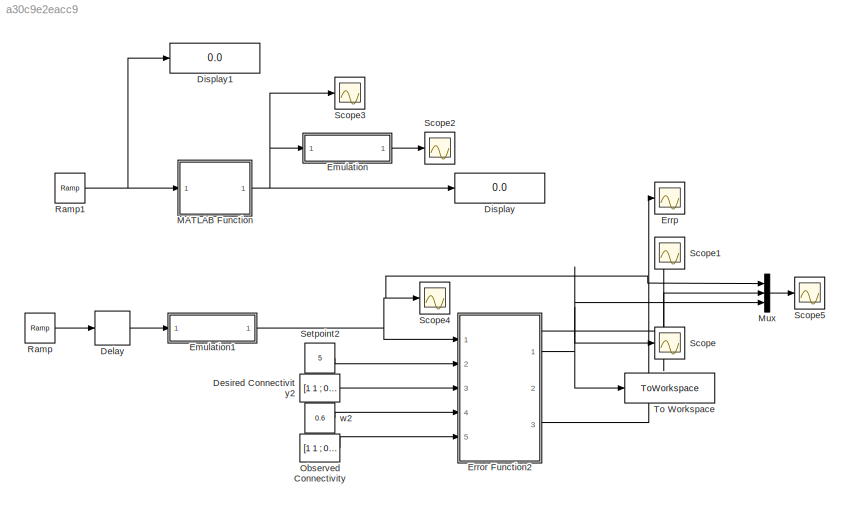
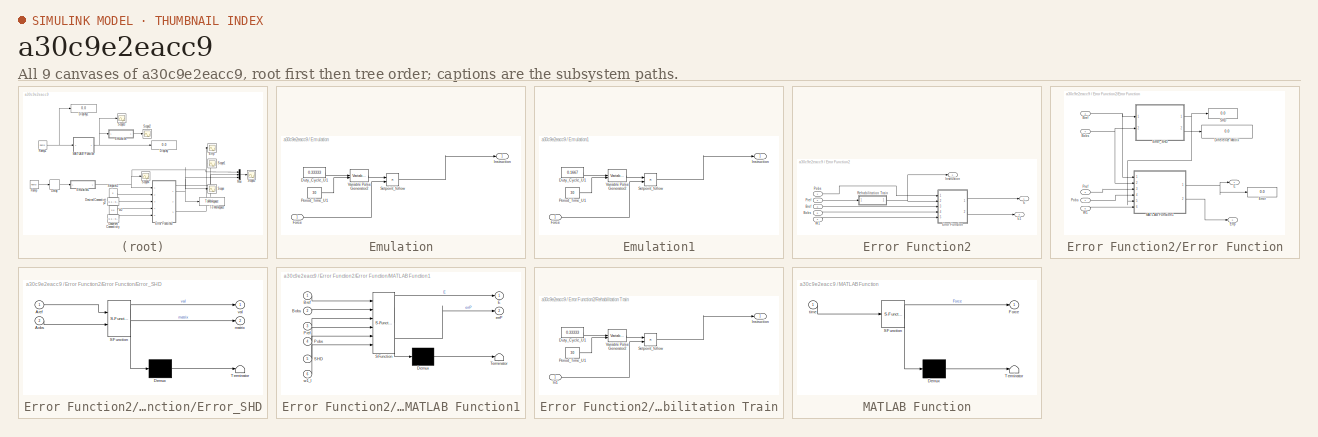
[diagram: thumbnail index - all 9 canvases of the model, root first then tree order]
MODEL slx_a30c9e2eacc9
KIND model
CONFIG AbsTol = auto
CONFIG EnableMultiTasking = off
CONFIG FixedStep = 1
CONFIG MaxStep = auto
CONFIG MinStep = auto
CONFIG RelTol = 1e-3
CONFIG SampleTimeConstraint = Unconstrained
CONFIG SolverName = FixedStepAuto
CONFIG StartTime = 0.0
CONFIG StopTime = 300
BLOCK [Delay] Delay
  DelayLength = 1
  InitialCondition = 0
  InputPortMap = u0
  Ports = [1, 1]
BLOCK [Constant] Desired Connectivity2
  NameLocation = left
  Value = [1   1 ; 0  1]
BLOCK [Display] Display
  Commented = on
  Decimation = 1
  Ports = [1]
BLOCK [Display] Display1
  Commented = on
  Decimation = 1
  Ports = [1]
BLOCK [SubSystem] Emulation
  Commented = on
  NameLocation = top
  Ports = [1, 1]
  RequestExecContextInheritance = off
BLOCK [Constant] Emulation/Duty_Cycle_U1
  OutMax = [0.8]
  OutMin = [0]
  Value = 0.33333
BLOCK [Inport] Emulation/Force
BLOCK [Outport] Emulation/Instruction
BLOCK [Constant] Emulation/Period_Time_U1
  Value = 30
BLOCK [Product] Emulation/Setpoint_follow
  Ports = [2, 1]
BLOCK [VariablePulseGenerator] Emulation/Variable Pulse Generator2
  AllowZeroPulseWidth = on
  NameLocation = left
  RunAtFixedTimeIntervals = on
BLOCK [SubSystem] Emulation1
  NameLocation = top
  Ports = [1, 1]
  RequestExecContextInheritance = off
BLOCK [Constant] Emulation1/Duty_Cycle_U1
  OutMax = [0.8]
  OutMin = [0]
  Value = 0.1667
BLOCK [Inport] Emulation1/Force
BLOCK [Outport] Emulation1/Instruction
BLOCK [Constant] Emulation1/Period_Time_U1
  Value = 30
BLOCK [Product] Emulation1/Setpoint_follow
  Ports = [2, 1]
BLOCK [VariablePulseGenerator] Emulation1/Variable Pulse Generator2
  AllowZeroPulseWidth = on
  NameLocation = left
  RunAtFixedTimeIntervals = on
BLOCK [SubSystem] Error Function2
  PortSchema = {"entries":[{"content":{"sides":[{"content":{"connectorIds":["In1","In2","In3","In4","In5"]},"type":"ConnectorPlacement.EquallySpacedRectSide","uuid":"444fbf9f-83f0-405e-b780-73f2a519e5d8"},{"content":{"connectorIds":["Out1"],"side":"RIGHT"},"type":"ConnectorPlacement.EquallySpacedRectSide","uuid":"580feeb9-eb76-4e38-ada2-7c0fba9b3602"},{"content":{"connectorIds":["Out2","Out3"],"side":"TOP"},"typ...<+277ch>
  Ports = [5, 3]
  RequestExecContextInheritance = off
BLOCK [Inport] Error Function2/Bobs
  NameLocation = left
  Port = 5
BLOCK [Inport] Error Function2/Bref
  NameLocation = left
  Port = 3
BLOCK [Outport] Error Function2/E
BLOCK [Outport] Error Function2/E1
  Port = 3
BLOCK [SubSystem] Error Function2/Error Function
  Ports = [5, 2]
  RequestExecContextInheritance = off
BLOCK [Inport] Error Function2/Error Function/Bobs
  Port = 4
BLOCK [Inport] Error Function2/Error Function/Bref
  Port = 3
BLOCK [Display] Error Function2/Error Function/Difference Matrix
  Decimation = 1
  Ports = [1]
BLOCK [Outport] Error Function2/Error Function/E
BLOCK [Display] Error Function2/Error Function/Error
  Decimation = 1
  Ports = [1]
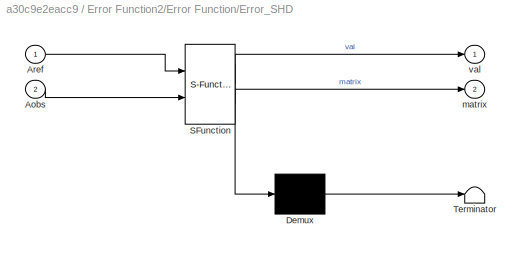
BLOCK [SubSystem] Error Function2/Error Function/Error_SHD
  ErrorFcn = Stateflow.Translate.translate
  PermitHierarchicalResolution = ExplicitOnly
  Ports = [2, 2]
  RequestExecContextInheritance = off
  SFBlockType = MATLAB Function
  TreatAsAtomicUnit = on
BLOCK [Demux] Error Function2/Error Function/Error_SHD/ Demux 
  Outputs = 1
  Ports = [1, 1]
BLOCK [S-Function] Error Function2/Error Function/Error_SHD/ SFunction 
  EnableBusSupport = on
  FunctionName = sf_sfun
  PortCounts = [2 3]
  Ports = [2, 3]
  SFcnIsStateOwnerBlock = off
  SFunctionDeploymentMode = off
  Tag = Stateflow S-Function 6
BLOCK [Terminator] Error Function2/Error Function/Error_SHD/ Terminator 
BLOCK [Inport] Error Function2/Error Function/Error_SHD/Aobs
  Port = 2
BLOCK [Inport] Error Function2/Error Function/Error_SHD/Aref
BLOCK [Outport] Error Function2/Error Function/Error_SHD/matrix
  Port = 2
BLOCK [Outport] Error Function2/Error Function/Error_SHD/val
BLOCK [Outport] Error Function2/Error Function/Errp
  Port = 2
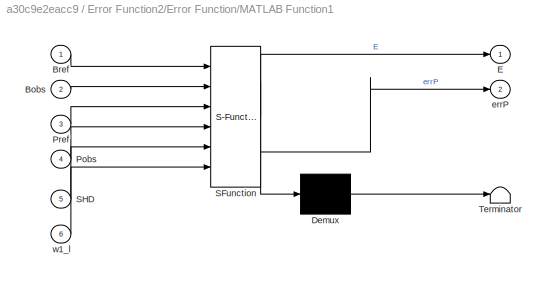
BLOCK [SubSystem] Error Function2/Error Function/MATLAB Function1
  ErrorFcn = Stateflow.Translate.translate
  PermitHierarchicalResolution = ExplicitOnly
  Ports = [6, 2]
  RequestExecContextInheritance = off
  SFBlockType = MATLAB Function
  TreatAsAtomicUnit = on
BLOCK [Demux] Error Function2/Error Function/MATLAB Function1/ Demux 
  Outputs = 1
  Ports = [1, 1]
BLOCK [S-Function] Error Function2/Error Function/MATLAB Function1/ SFunction 
  EnableBusSupport = on
  FunctionName = sf_sfun
  PortCounts = [6 3]
  Ports = [6, 3]
  SFcnIsStateOwnerBlock = off
  SFunctionDeploymentMode = off
  Tag = Stateflow S-Function 8
BLOCK [Terminator] Error Function2/Error Function/MATLAB Function1/ Terminator 
BLOCK [Inport] Error Function2/Error Function/MATLAB Function1/Bobs
  Port = 2
BLOCK [Inport] Error Function2/Error Function/MATLAB Function1/Bref
BLOCK [Outport] Error Function2/Error Function/MATLAB Function1/E
BLOCK [Inport] Error Function2/Error Function/MATLAB Function1/Pobs
  Port = 4
BLOCK [Inport] Error Function2/Error Function/MATLAB Function1/Pref
  Port = 3
BLOCK [Inport] Error Function2/Error Function/MATLAB Function1/SHD
  Port = 5
BLOCK [Outport] Error Function2/Error Function/MATLAB Function1/errP
  Port = 2
BLOCK [Inport] Error Function2/Error Function/MATLAB Function1/w1_l
  Port = 6
BLOCK [Inport] Error Function2/Error Function/Pobs
BLOCK [Inport] Error Function2/Error Function/Pref
  Port = 2
BLOCK [Display] Error Function2/Error Function/SHD
  Decimation = 1
  Ports = [1]
BLOCK [Inport] Error Function2/Error Function/W1
  Port = 5
BLOCK [Outport] Error Function2/Instruction
  Port = 2
BLOCK [Inport] Error Function2/Pobs
  NameLocation = left
BLOCK [Inport] Error Function2/Pref
  NameLocation = left
  Port = 2
BLOCK [SubSystem] Error Function2/Rehabilitation Train
  NameLocation = top
  Ports = [1, 1]
  RequestExecContextInheritance = off
BLOCK [Constant] Error Function2/Rehabilitation Train/Duty_Cycle_U1
  OutMax = [0.8]
  OutMin = [0]
  Value = 0.33333
BLOCK [Inport] Error Function2/Rehabilitation Train/In1
BLOCK [Outport] Error Function2/Rehabilitation Train/Instruction
BLOCK [Constant] Error Function2/Rehabilitation Train/Period_Time_U1
  Value = 30
BLOCK [Product] Error Function2/Rehabilitation Train/Setpoint_follow
  Ports = [2, 1]
BLOCK [VariablePulseGenerator] Error Function2/Rehabilitation Train/Variable Pulse Generator2
  AllowZeroPulseWidth = on
  NameLocation = left
  RunAtFixedTimeIntervals = on
BLOCK [Inport] Error Function2/W1
  NameLocation = left
  Port = 4
BLOCK [Scope] Errp
  Floating = off
  NumInputPorts = 1
  Ports = [1]
  ScopeSpecificationString = Simulink.scopes.TimeScopeBlockCfg('CurrentConfiguration', extmgr.ConfigurationSet(extmgr.Configuration('Core','General UI',true),extmgr.Configuration('Core','Source UI',true),extmgr.Configuration('Sources','WiredSimulink',true,'DataLoggingVariableName','ScopeData1'),extmgr.Configuration('Visuals','Time Domain',true,'SerializedDisplays',{struct('MinYLimReal','-3.14673','MaxYLimReal','28.3206','YLab...<+1434ch>
BLOCK [SubSystem] MATLAB Function
  Commented = on
  ErrorFcn = Stateflow.Translate.translate
  PermitHierarchicalResolution = ExplicitOnly
  Ports = [1, 1]
  RequestExecContextInheritance = off
  SFBlockType = MATLAB Function
  TreatAsAtomicUnit = on
BLOCK [Demux] MATLAB Function/ Demux 
  Outputs = 1
  Ports = [1, 1]
BLOCK [S-Function] MATLAB Function/ SFunction 
  EnableBusSupport = on
  FunctionName = sf_sfun
  PortCounts = [1 2]
  Ports = [1, 2]
  SFcnIsStateOwnerBlock = off
  SFunctionDeploymentMode = off
  Tag = Stateflow S-Function 2
BLOCK [Terminator] MATLAB Function/ Terminator 
BLOCK [Outport] MATLAB Function/Force
BLOCK [Inport] MATLAB Function/time
BLOCK [Mux] Mux
  DisplayOption = bar
  Inputs = 3
  Ports = [3, 1]
BLOCK [Constant] Observed Connectivity
  NameLocation = left
  Value = [1   1 ; 0  1]
BLOCK [Reference] Ramp  REF=simulink/Sources/Ramp
  Ports = [0, 1]
  SourceBlock = simulink/Sources/Ramp
  SourceProductBaseCode = SL
  SourceType = Ramp
BLOCK [Reference] Ramp1  REF=simulink/Sources/Ramp
  Commented = on
  Ports = [0, 1]
  SourceBlock = simulink/Sources/Ramp
  SourceProductBaseCode = SL
  SourceType = Ramp
BLOCK [Scope] Scope
  Floating = off
  NumInputPorts = 1
  Ports = [1]
  ScopeSpecificationString = Simulink.scopes.TimeScopeBlockCfg('CurrentConfiguration', extmgr.ConfigurationSet(extmgr.Configuration('Core','General UI',true),extmgr.Configuration('Core','Source UI',true),extmgr.Configuration('Sources','WiredSimulink',true),extmgr.Configuration('Visuals','Time Domain',true,'SerializedDisplays',{struct('MinYLimReal','-1.25869','MaxYLimReal','11.32824','YLabelReal','','MinYLimMag','0.00000','Max...<+1366ch>
BLOCK [Scope] Scope1
  Floating = off
  NumInputPorts = 1
  Ports = [1]
  ScopeSpecificationString = Simulink.scopes.TimeScopeBlockCfg('CurrentConfiguration', extmgr.ConfigurationSet(extmgr.Configuration('Core','General UI',true),extmgr.Configuration('Core','Source UI',true),extmgr.Configuration('Sources','WiredSimulink',true,'DataLoggingVariableName','ScopeData1'),extmgr.Configuration('Visuals','Time Domain',true,'SerializedDisplays',{struct('MinYLimReal','-0.625','MaxYLimReal','5.625','YLabelRe...<+1393ch>
BLOCK [Scope] Scope2
  Commented = on
  Floating = off
  NumInputPorts = 1
  Ports = [1]
  ScopeSpecificationString = Simulink.scopes.TimeScopeBlockCfg('CurrentConfiguration', extmgr.ConfigurationSet(extmgr.Configuration('Core','General UI',true),extmgr.Configuration('Core','Source UI',true),extmgr.Configuration('Sources','WiredSimulink',true,'DataLoggingVariableName','ScopeData2'),extmgr.Configuration('Visuals','Time Domain',true,'SerializedDisplays',{struct('MinYLimReal','-0.125','MaxYLimReal','1.125','YLabelRe...<+1381ch>
BLOCK [Scope] Scope3
  Commented = on
  Floating = off
  NumInputPorts = 1
  Ports = [1]
  ScopeSpecificationString = Simulink.scopes.TimeScopeBlockCfg('CurrentConfiguration', extmgr.ConfigurationSet(extmgr.Configuration('Core','General UI',true),extmgr.Configuration('Core','Source UI',true),extmgr.Configuration('Sources','WiredSimulink',true,'DataLoggingVariableName','ScopeData3'),extmgr.Configuration('Visuals','Time Domain',true,'SerializedDisplays',{struct('MinYLimReal','-0.125','MaxYLimReal','1.125','YLabelRe...<+1387ch>
BLOCK [Scope] Scope4
  Floating = off
  NumInputPorts = 1
  Ports = [1]
  ScopeSpecificationString = Simulink.scopes.TimeScopeBlockCfg('CurrentConfiguration', extmgr.ConfigurationSet(extmgr.Configuration('Core','General UI',true),extmgr.Configuration('Core','Source UI',true),extmgr.Configuration('Sources','WiredSimulink',true,'DataLoggingVariableName','ScopeData4'),extmgr.Configuration('Visuals','Time Domain',true,'SerializedDisplays',{struct('MinYLimReal','-1.24625','MaxYLimReal','11.21625','YLa...<+1428ch>
BLOCK [Scope] Scope5
  Floating = off
  NumInputPorts = 1
  Ports = [1]
  ScopeSpecificationString = Simulink.scopes.TimeScopeBlockCfg('CurrentConfiguration', extmgr.ConfigurationSet(extmgr.Configuration('Core','General UI',true),extmgr.Configuration('Core','Source UI',true),extmgr.Configuration('Sources','WiredSimulink',true,'DataLoggingVariableName','ScopeData5'),extmgr.Configuration('Visuals','Time Domain',true,'SerializedDisplays',{struct('MinYLimReal','-1.25869','MaxYLimReal','11.32824','YLa...<+1467ch>
BLOCK [Constant] Setpoint2
  NameLocation = left
  Value = 5
BLOCK [ToWorkspace] To Workspace
  FixptAsFi = on
  MaxDataPoints = inf
  Ports = [1]
  SampleTime = -1
  SaveFormat = Timeseries
  VariableName = Error_Function
BLOCK [Constant] w2
  NameLocation = left
  Value = 0.6
LINE Delay:1 -> Emulation1:1
LINE Desired Connectivity2:1 -> Error Function2:3
LINE Emulation/Duty_Cycle_U1:1 -> Emulation/Variable Pulse Generator2:1
LINE Emulation/Force:1 -> Emulation/Setpoint_follow:2
LINE Emulation/Period_Time_U1:1 -> Emulation/Variable Pulse Generator2:2
LINE Emulation/Setpoint_follow:1 -> Emulation/Instruction:1
LINE Emulation/Variable Pulse Generator2:1 -> Emulation/Setpoint_follow:1
LINE Emulation1/Duty_Cycle_U1:1 -> Emulation1/Variable Pulse Generator2:1
LINE Emulation1/Force:1 -> Emulation1/Setpoint_follow:2
LINE Emulation1/Period_Time_U1:1 -> Emulation1/Variable Pulse Generator2:2
LINE Emulation1/Setpoint_follow:1 -> Emulation1/Instruction:1
LINE Emulation1/Variable Pulse Generator2:1 -> Emulation1/Setpoint_follow:1
NET Emulation1:1 -> Error Function2:1, Mux:1, Scope4:1
LINE Emulation:1 -> Scope2:1
LINE Error Function2/Bobs:1 -> Error Function2/Error Function:4
LINE Error Function2/Bref:1 -> Error Function2/Error Function:3
NET Error Function2/Error Function/Bobs:1 -> Error Function2/Error Function/Error_SHD:2, Error Function2/Error Function/MATLAB Function1:2
NET Error Function2/Error Function/Bref:1 -> Error Function2/Error Function/Error_SHD:1, Error Function2/Error Function/MATLAB Function1:1
NET Error Function2/Error Function/Error_SHD:1 -> Error Function2/Error Function/MATLAB Function1:5, Error Function2/Error Function/SHD:1
LINE Error Function2/Error Function/Error_SHD:2 -> Error Function2/Error Function/Difference Matrix:1
NET Error Function2/Error Function/MATLAB Function1:1 -> Error Function2/Error Function/E:1, Error Function2/Error Function/Error:1
LINE Error Function2/Error Function/MATLAB Function1:2 -> Error Function2/Error Function/Errp:1
LINE Error Function2/Error Function/Pobs:1 -> Error Function2/Error Function/MATLAB Function1:4
LINE Error Function2/Error Function/Pref:1 -> Error Function2/Error Function/MATLAB Function1:3
LINE Error Function2/Error Function/W1:1 -> Error Function2/Error Function/MATLAB Function1:6
LINE Error Function2/Error Function:1 -> Error Function2/E:1
LINE Error Function2/Error Function:2 -> Error Function2/E1:1
LINE Error Function2/Pobs:1 -> Error Function2/Error Function:1
LINE Error Function2/Pref:1 -> Error Function2/Rehabilitation Train:1
LINE Error Function2/Rehabilitation Train/Duty_Cycle_U1:1 -> Error Function2/Rehabilitation Train/Variable Pulse Generator2:1
LINE Error Function2/Rehabilitation Train/In1:1 -> Error Function2/Rehabilitation Train/Setpoint_follow:2
LINE Error Function2/Rehabilitation Train/Period_Time_U1:1 -> Error Function2/Rehabilitation Train/Variable Pulse Generator2:2
LINE Error Function2/Rehabilitation Train/Setpoint_follow:1 -> Error Function2/Rehabilitation Train/Instruction:1
LINE Error Function2/Rehabilitation Train/Variable Pulse Generator2:1 -> Error Function2/Rehabilitation Train/Setpoint_follow:1
NET Error Function2/Rehabilitation Train:1 -> Error Function2/Error Function:2, Error Function2/Instruction:1
LINE Error Function2/W1:1 -> Error Function2/Error Function:5
NET Error Function2:1 -> Mux:3, Scope:1, To Workspace:1
NET Error Function2:2 -> Mux:2, Scope1:1
LINE Error Function2:3 -> Errp:1
NET MATLAB Function:1 -> Display:1, Emulation:1, Scope3:1
LINE Mux:1 -> Scope5:1
LINE Observed Connectivity:1 -> Error Function2:5
NET Ramp1:1 -> Display1:1, MATLAB Function:1
LINE Ramp:1 -> Delay:1
LINE Setpoint2:1 -> Error Function2:2
LINE w2:1 -> Error Function2:4
note: NET lines group one-source signal fan-out (src -> all destinations, sorted); 1:1 wires keep LINE
CHART MATLAB Function states=1 transitions=1
  STATE_LABEL 'eML_blk_kernel()'
  STATE_LABEL 'SCRIPT:\nfunction Force  = fcn(time)\n\n%Function to increase force each determined time, we are not considering\n%the actual error\n\nI = 0:30:300; % Tiempo de cambio\ntemp = 0;\nfor i = 1:10\n    if time == I(i)\n        temp = time / I(i);\n    end\nend\n\nForce = temp;'
CHART Error Function2/Error Function/Error_SHD states=1 transitions=1
  STATE_LABEL 'eML_blk_kernel()'
  STATE_LABEL 'SCRIPT:\nfunction [val,matrix]=SHD(Aref,Aobs)\n\nval = sum(sum(xor(Aref,Aobs)));\nmatrix = xor(Aref,Aobs);\n\n'
CHART Error Function2/Error Function/MATLAB Function1 states=1 transitions=1
  STATE_LABEL 'eML_blk_kernel()'
  STATE_LABEL 'SCRIPT:\nfunction [E,errP]  = ErrorFunction(Bref, Bobs, Pref, Pobs, SHD, w1_l)\n    w1 = w1_l; %Use whatever values you like most. Threshold \n\n    w2 = 1 - w1;\n\n    assert(all(size(Bref) == size(Bobs)));\n\n    assert(size(Bref,1) == size(Bref,2));\n\n    nChannels = size(Bref,1);\n\n    BfullyConnected = ones(nChannels);\n\n    BfullyDisconnected = zeros(nChannels);\n\n   \n    maxDiffSHD= sum(sum(xor(BfullyC...<+221ch>'
CHART  states=0 transitions=0
CHART  states=0 transitions=0
CHART  states=0 transitions=0
